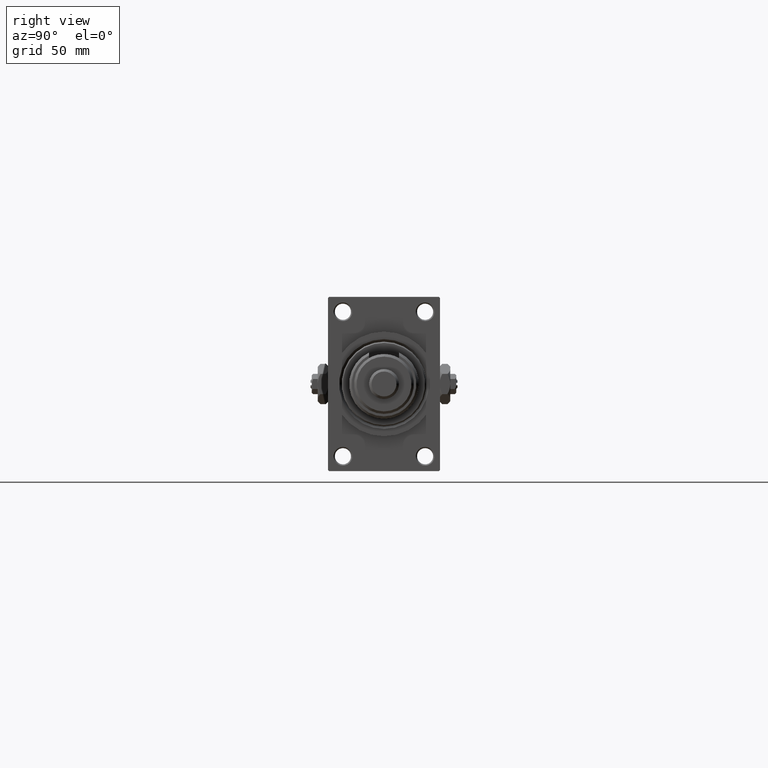
[diagram: clean part render]
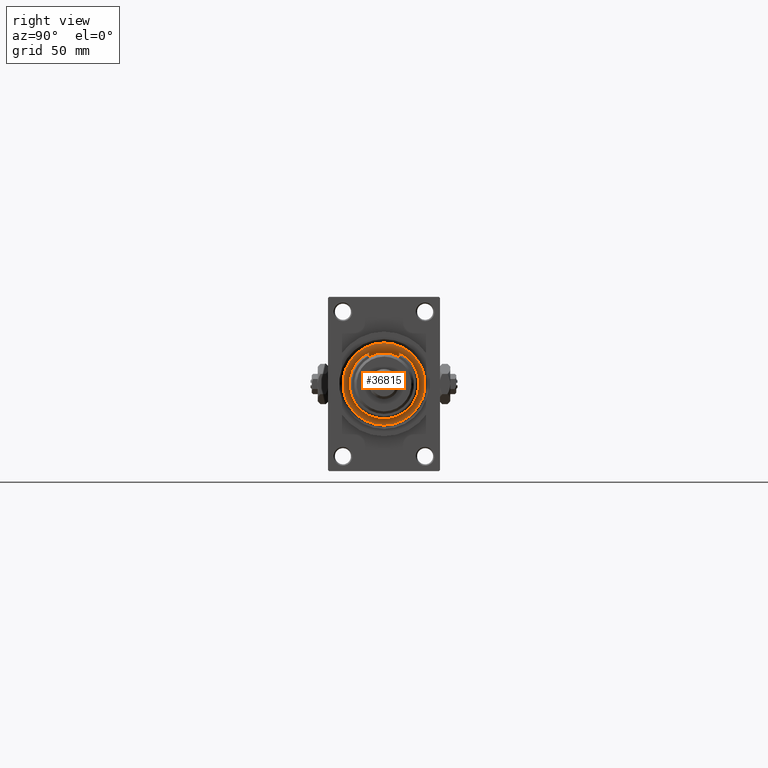
[diagram: same view with one face highlighted and labeled with its STEP entity id]
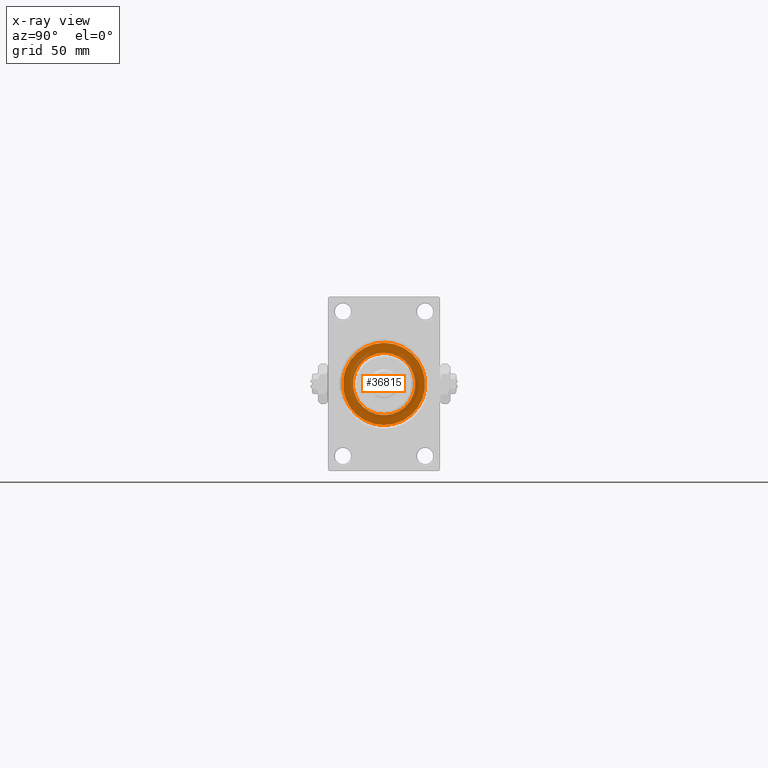
[diagram: x-ray of the same camera — body ghosted, the highlighted face saturated]
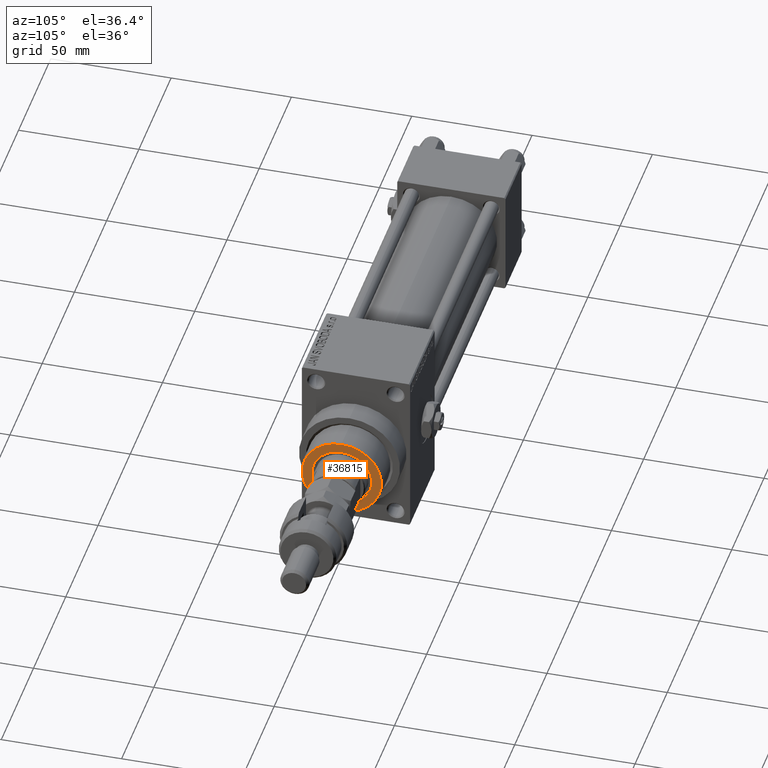
[diagram: same view with one face highlighted and labeled with its STEP entity id]
A machine part, right view. The second image highlights one B-rep face of the part: STEP entity #36815.
The next image is the same camera in x-ray: the body ghosted, the highlighted face saturated — about 29% of this face is hidden behind the body in this view.
A second angle (auxiliary view) of the same face is appended — the face is thin or edge-on in the first view.
In plain terms, the highlighted planar face has unit normal (1, -0, -0).
Its self-contained STEP definition (entity closure, byte-faithful):
#861 = AXIS2_PLACEMENT_3D ( 'NONE', #8602, #4691, #20570 ) ;
#1472 = VERTEX_POINT ( 'NONE', #16387 ) ;
#1847 = CARTESIAN_POINT ( 'NONE',  ( 0.000000000000000000, 0.000000000000000000, 55.26000000000000512 ) ) ;
#1956 = AXIS2_PLACEMENT_3D ( 'NONE', #11761, #43507, #46903 ) ;
#2153 = DIRECTION ( 'NONE',  ( 0.000000000000000000, 0.000000000000000000, 1.000000000000000000 ) ) ;
#4691 = DIRECTION ( 'NONE',  ( 0.000000000000000000, 0.000000000000000000, 1.000000000000000000 ) ) ;
#8090 = CIRCLE ( 'NONE', #32991, 12.50000000000000000 ) ;
#8118 = CIRCLE ( 'NONE', #11417, 16.50000000000001421 ) ;
#8602 = CARTESIAN_POINT ( 'NONE',  ( 0.000000000000000000, 0.000000000000000000, 55.26000000000000512 ) ) ;
#9066 = DIRECTION ( 'NONE',  ( 0.000000000000000000, 0.000000000000000000, 1.000000000000000000 ) ) ;
#9418 = CIRCLE ( 'NONE', #1956, 12.50000000000000000 ) ;
#10248 = ORIENTED_EDGE ( 'NONE', *, *, #23016, .T. ) ;
#11417 = AXIS2_PLACEMENT_3D ( 'NONE', #44717, #9066, #40048 ) ;
#11761 = CARTESIAN_POINT ( 'NONE',  ( 0.000000000000000000, 0.000000000000000000, 55.26000000000000512 ) ) ;
#12297 = ORIENTED_EDGE ( 'NONE', *, *, #47728, .T. ) ;
#13290 = DIRECTION ( 'NONE',  ( 0.000000000000000000, 0.000000000000000000, 1.000000000000000000 ) ) ;
#15712 = FACE_OUTER_BOUND ( 'NONE', #27463, .T. ) ;
#16387 = CARTESIAN_POINT ( 'NONE',  ( 12.50000000000000000, 0.000000000000000000, 55.26000000000000512 ) ) ;
#17062 = VERTEX_POINT ( 'NONE', #40035 ) ;
#18765 = VERTEX_POINT ( 'NONE', #50896 ) ;
#20072 = ORIENTED_EDGE ( 'NONE', *, *, #35387, .F. ) ;
#20570 = DIRECTION ( 'NONE',  ( 1.000000000000000000, 0.000000000000000000, 0.000000000000000000 ) ) ;
#22471 = CIRCLE ( 'NONE', #861, 16.50000000000001421 ) ;
#23016 = EDGE_CURVE ( 'NONE', #34705, #18765, #22471, .T. ) ;
#27463 = EDGE_LOOP ( 'NONE', ( #12297, #10248 ) ) ;
#28412 = ORIENTED_EDGE ( 'NONE', *, *, #43831, .F. ) ;
#31578 = PLANE ( 'NONE',  #37721 ) ;
#32991 = AXIS2_PLACEMENT_3D ( 'NONE', #1847, #13290, #34106 ) ;
#34106 = DIRECTION ( 'NONE',  ( 1.000000000000000000, 0.000000000000000000, 0.000000000000000000 ) ) ;
#34705 = VERTEX_POINT ( 'NONE', #36576 ) ;
#35387 = EDGE_CURVE ( 'NONE', #1472, #17062, #9418, .T. ) ;
#36576 = CARTESIAN_POINT ( 'NONE',  ( 16.50000000000001421, 2.051283388571817281E-15, 55.26000000000000512 ) ) ;
#36815 = ADVANCED_FACE ( 'NONE', ( #51366, #15712 ), #31578, .T. ) ;
#37721 = AXIS2_PLACEMENT_3D ( 'NONE', #47458, #2153, #41956 ) ;
#37900 = EDGE_LOOP ( 'NONE', ( #20072, #28412 ) ) ;
#40035 = CARTESIAN_POINT ( 'NONE',  ( -12.50000000000000000, 1.530808498934191521E-15, 55.26000000000000512 ) ) ;
#40048 = DIRECTION ( 'NONE',  ( 1.000000000000000000, 0.000000000000000000, 0.000000000000000000 ) ) ;
#41956 = DIRECTION ( 'NONE',  ( 1.000000000000000000, 0.000000000000000000, -0.000000000000000000 ) ) ;
#43507 = DIRECTION ( 'NONE',  ( 0.000000000000000000, 0.000000000000000000, 1.000000000000000000 ) ) ;
#43831 = EDGE_CURVE ( 'NONE', #17062, #1472, #8090, .T. ) ;
#44717 = CARTESIAN_POINT ( 'NONE',  ( 0.000000000000000000, 0.000000000000000000, 55.26000000000000512 ) ) ;
#46903 = DIRECTION ( 'NONE',  ( 1.000000000000000000, 0.000000000000000000, 0.000000000000000000 ) ) ;
#47458 = CARTESIAN_POINT ( 'NONE',  ( 0.000000000000000000, 0.000000000000000000, 55.26000000000000512 ) ) ;
#47728 = EDGE_CURVE ( 'NONE', #18765, #34705, #8118, .T. ) ;
#50896 = CARTESIAN_POINT ( 'NONE',  ( -16.50000000000001421, 0.000000000000000000, 55.26000000000000512 ) ) ;
#51366 = FACE_BOUND ( 'NONE', #37900, .T. ) ;